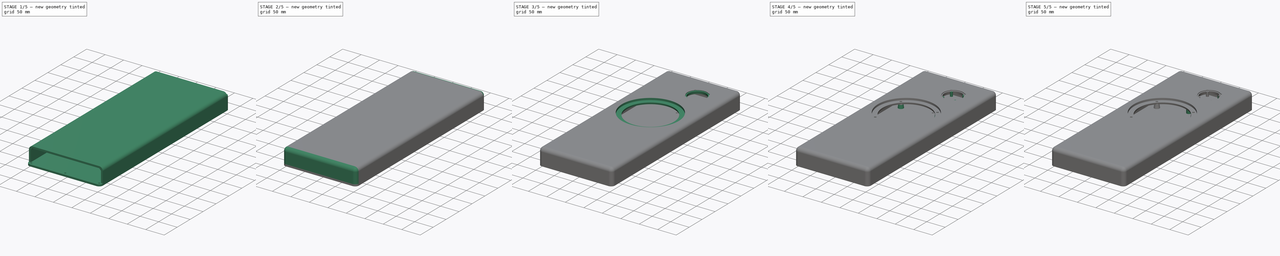
[diagram: build sequence overview — one tinted view per stage of 5, left to right]
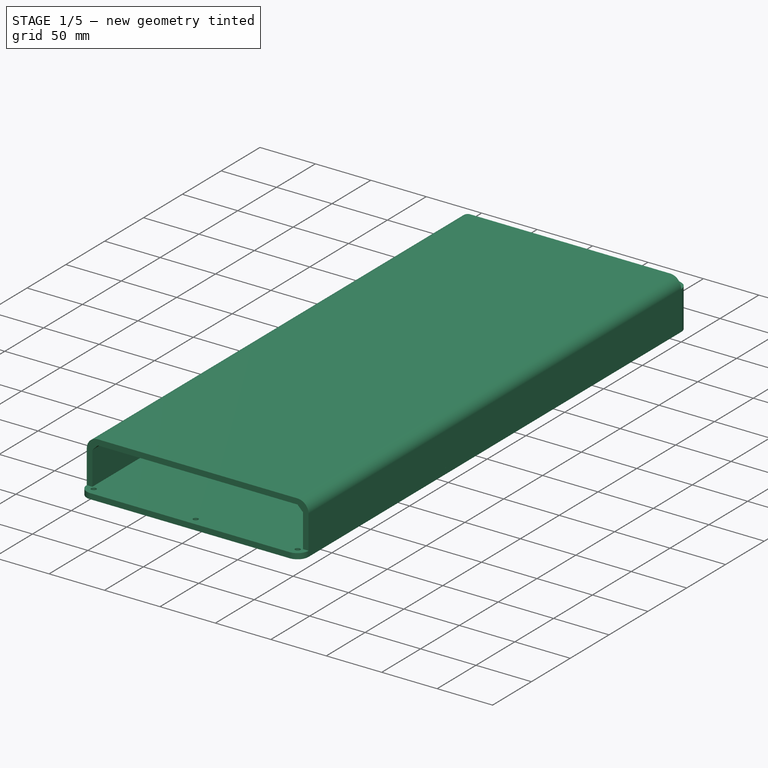
[diagram: stage 1 of 5 — iso view after this stage's code; geometry added in this stage tinted green]
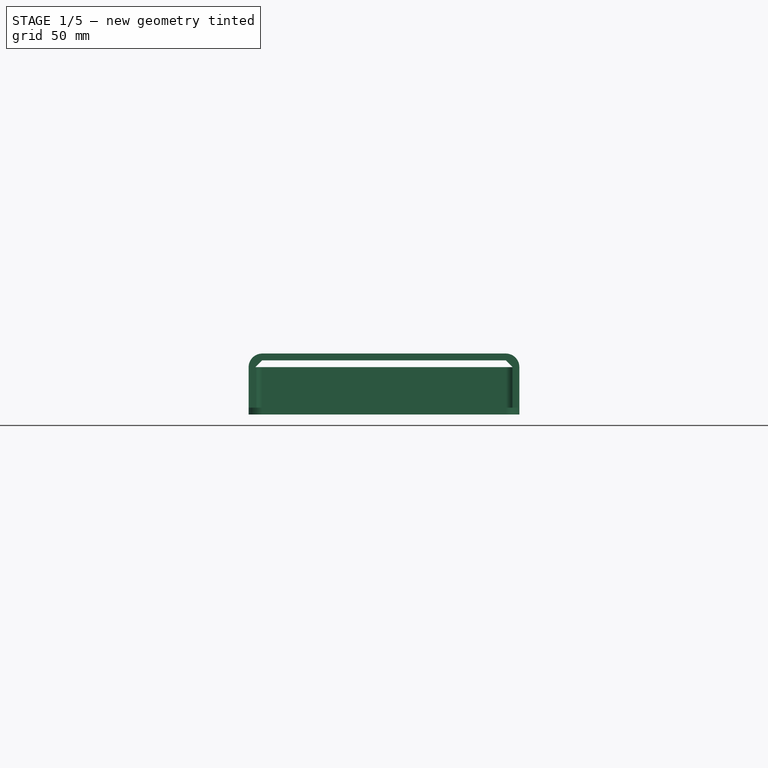
[diagram: stage 1 of 5 — front view after this stage's code; geometry added in this stage tinted green]
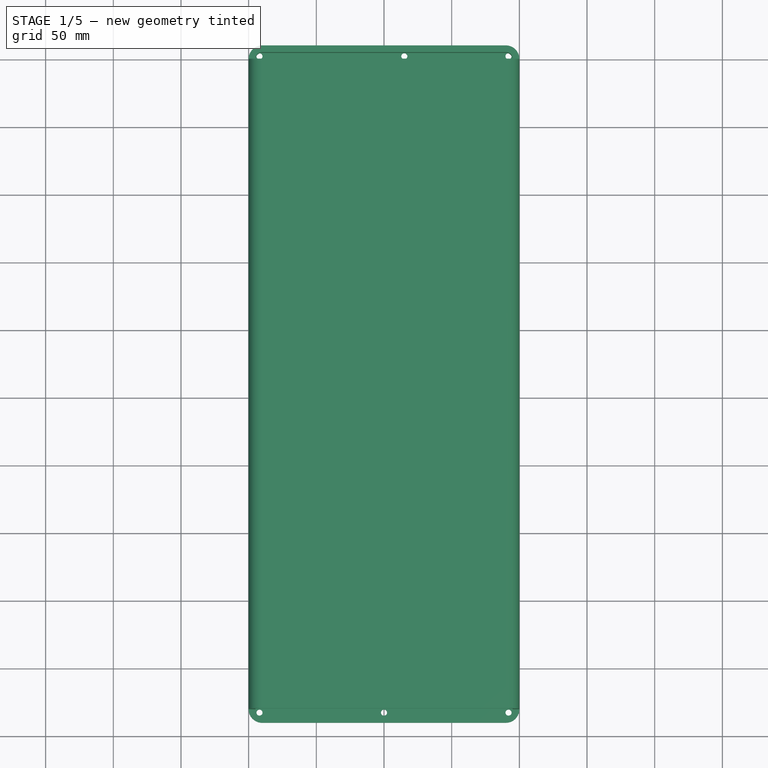
[diagram: stage 1 of 5 — top view after this stage's code; geometry added in this stage tinted green]
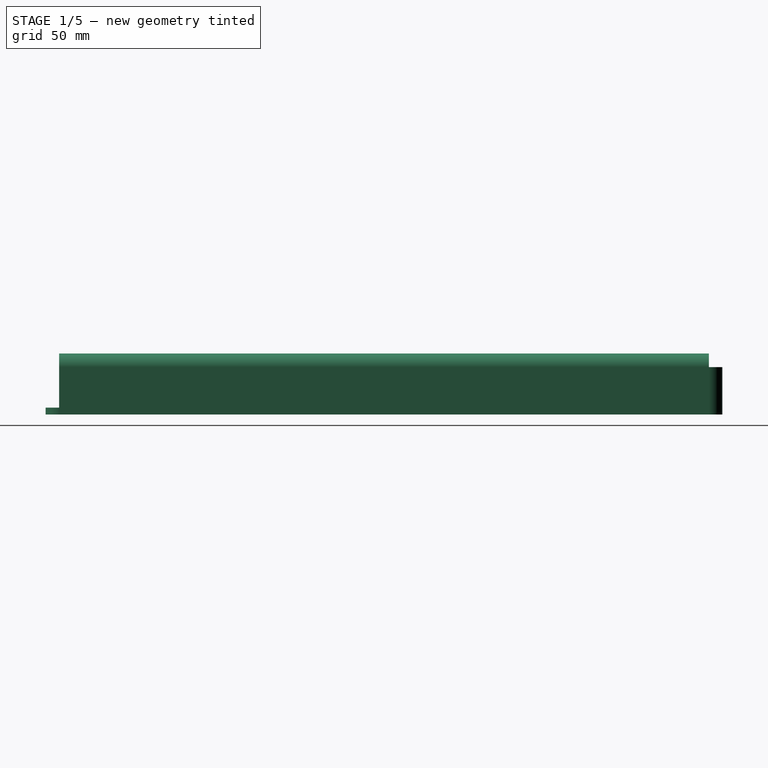
[diagram: stage 1 of 5 — right view after this stage's code; geometry added in this stage tinted green]
FCSTD DOCUMENT  (FreeCAD 1.1R39841 (Git))
Label: wallspeakers 0.1
License: All rights reserved
LicenseURL: http://en.wikipedia.org/wiki/All_rights_reserved
objects: Sketcher::SketchObject×18, PartDesign::Pad×9, PartDesign::Pocket×6, PartDesign::Hole×4, App::Point×2, PartDesign::Revolution×2, PartDesign::Body×2, Spreadsheet::Sheet×1, Part::Feature×1
note: 102 computed .brp shape members not serialized (recipe doc carries the construction recipe); baked Part::Feature solids carry a one-line shape summary decoded from their .brp

FEATURE [Spreadsheet::Sheet] Spreadsheet  label="dim"
  cells = A1='ext_width; B1(ext_width)=200; A2='ext_length; B2(ext_length)=500; A3='back_thickness; B3(back_thickness)=5; A4='front_thickness; B4(front_thickness)=5; A5='wall_height; B5(wall_height)=30; A6='wall_thickness; B6(wall_thickness)=5; A7='front_roundover; B7(front_roundover)=10; A12='bmr_x; B12(bmr_x)=32.5; A13='bmr_y; B13(bmr_y)=65; A14='bmr_screw_distance; B14(bmr_screw_distance)=24; A15='bmr_screw_offset; B15(bmr_screw_offset)==B14 * 0.707; A16='bmr_hole_diameter; B16(bmr_hole_diameter)=46.5; A17='bmr_rebate_depth; B17(bmr_rebate_depth)=2; A18='bmr_post_width; B18(bmr_post_width)=7; A20='woofer_x; B20(woofer_x)=0; A21='woofer_y; B21(woofer_y)=200; A22='woofer_support_thickness; B22=5; A23='woofer_screw_distance; B23(woofer_screw_thickness)=140.1; A24='woofer_screw_offset; B24(woofer_screw_offset)==B23 * 0.707; A25='woofer_hole_diameter; B25(woofer_hole_diameter)=128; A26='woofer_rebate_depth; B26(woofer_rebate_depth)=5.3
FEATURE [App::Point] Origin018
  Role = Origin
FEATURE [Sketcher::SketchObject] Sketch023  label="front shell major"
  ArcFitTolerance = 1e-06
  AttachmentSupport = -> [XZ_Plane009]
  ExternalTypes = [0]
  FullyConstrained = true
  MakeInternals = false
  MapMode = 5
  Placement = pos=(0,0,0) rot=(1,0,0;1.5708rad)
  expr: Constraints[10] = <<dim>>.front_roundover
  expr: Constraints[13] = <<dim>>.wall_height
  expr: Constraints[14] = <<dim>>.wall_height
  expr: Constraints[20] = <<dim>>.wall_thickness
  expr: Constraints[22] = <<dim>>.wall_height
  expr: Constraints[23] = <<dim>>.wall_height
  expr: Constraints[24] = <<dim>>.front_thickness
  expr: Constraints[26] = 180 mm
  expr: Constraints[2] = <<dim>>.front_roundover
  expr: Constraints[5] = <<dim>>.wall_height
  expr: Constraints[6] = <<dim>>.ext_width / 2
  expr: Constraints[7] = <<dim>>.wall_height
  sketch-geometry (12):
    g0: LineSegment StartX=-100 StartY=0 StartZ=0 EndX=-100 EndY=30 EndZ=0
    g1: ArcOfCircle CenterX=-90 CenterY=30 CenterZ=0 NormalX=0 NormalY=0 NormalZ=1 AngleXU=0 Radius=10 StartAngle=1.5708 EndAngle=3.14159
    g2: LineSegment StartX=100 StartY=0 StartZ=0 EndX=100 EndY=30 EndZ=0
    g3: ArcOfCircle CenterX=90 CenterY=30 CenterZ=0 NormalX=0 NormalY=0 NormalZ=1 AngleXU=0 Radius=10 StartAngle=0 EndAngle=1.5708
    g4: LineSegment StartX=-90 StartY=40 StartZ=0 EndX=90 EndY=40 EndZ=0
    g5: LineSegment StartX=-95 StartY=0 StartZ=0 EndX=-95 EndY=30 EndZ=0
    g6: LineSegment StartX=95 StartY=0 StartZ=0 EndX=95 EndY=30 EndZ=0
    g7: LineSegment StartX=-90 StartY=35 StartZ=0 EndX=90 EndY=35 EndZ=0
    g8: LineSegment StartX=-95 StartY=30 StartZ=0 EndX=-90 EndY=35 EndZ=0
    g9: LineSegment StartX=90 StartY=35 StartZ=0 EndX=95 EndY=30 EndZ=0
    g10: LineSegment StartX=95 StartY=0 StartZ=0 EndX=100 EndY=0 EndZ=0
    g11: LineSegment StartX=-100 StartY=0 StartZ=0 EndX=-95 EndY=0 EndZ=0
  constraints (35):
    c: PointOnObject(g0,g-1)
    c: Vertical(g0)
    c: Radius(g1) = 10
    c: Coincident(g1,g0)
    c: Angle(g1) = 1.5708
    c: DistanceY(g0,g0) = 30
    c: DistanceX(g0,g-1) = 100
    c: DistanceY(g-1,g1) = 30
    c: Vertical(g2)
    c: Angle(g3) = 1.5708
    c: Radius(g3) = 10
    c: Symmetric(g0,g2,g-2)
    c: Coincident(g3,g2)
    c: DistanceY(g2,g2) = 30
    c: DistanceY(g-1,g3) = 30
    c: Coincident(g4,g1)
    c: Coincident(g4,g3)
    c: PointOnObject(g5,g-1)
    c: Vertical(g5)
    c: Vertical(g6)
    c: Distance(g5,g0) = 5
    c: Symmetric(g5,g6,g-2)
    c: DistanceY(g5,g5) = 30
    c: DistanceY(g6,g6) = 30
    c: Distance(g7,g3) = 5
    c: Symmetric(g7,g7,g-2)
    c: DistanceX(g7,g7) = 180
    c: Coincident(g8,g5)
    c: Coincident(g8,g7)
    c: Coincident(g9,g7)
    c: Coincident(g9,g6)
    c: Coincident(g10,g6)
    c: Coincident(g10,g2)
    c: Coincident(g11,g0)
    c: Coincident(g11,g5)
FEATURE [PartDesign::Pad] Pad020
  Direction = (0,-1,2e-16)
  Length = 480
  Length2 = 10
  Placement = pos=(0,0,0) rot=(1,0,0;1.5708rad)
  Profile = -> Sketch023
  ReferenceAxis = -> Sketch023 [N_Axis]
  Suppressed = false
  Type = 0
  expr: Length = <<dim>>.ext_length - <<dim>>.front_roundover * 2
FEATURE [Sketcher::SketchObject] Sketch024
  ArcFitTolerance = 1e-06
  AttachmentSupport = -> [XY_Plane009]
  ExternalTypes = [0]
  FullyConstrained = true
  MakeInternals = false
  MapMode = 5
  expr: Constraints[0] = <<dim>>.ext_width - <<dim>>.front_roundover * 2
  expr: Constraints[16] = <<dim>>.ext_width / 2 - <<dim>>.front_roundover
  expr: Constraints[1] = <<dim>>.ext_width - <<dim>>.front_roundover * 2
  expr: Constraints[4] = <<dim>>.front_thickness
  expr: Constraints[5] = <<dim>>.front_roundover
  expr: Constraints[8] = <<dim>>.ext_width / 2 - <<dim>>.front_roundover
  sketch-geometry (8):
    g0: LineSegment StartX=-90 StartY=10 StartZ=0 EndX=90 EndY=10 EndZ=0
    g1: LineSegment StartX=-90 StartY=5 StartZ=0 EndX=90 EndY=5 EndZ=0
    g2: ArcOfCircle CenterX=90 CenterY=0 CenterZ=0 NormalX=0 NormalY=0 NormalZ=1 AngleXU=0 Radius=10 StartAngle=0 EndAngle=1.5708
    g3: ArcOfCircle CenterX=90 CenterY=0 CenterZ=0 NormalX=0 NormalY=0 NormalZ=1 AngleXU=0 Radius=5 StartAngle=0 EndAngle=1.5708
    g4: ArcOfCircle CenterX=-90 CenterY=0 CenterZ=0 NormalX=0 NormalY=0 NormalZ=1 AngleXU=0 Radius=10 StartAngle=1.5708 EndAngle=3.14159
    g5: ArcOfCircle CenterX=-90 CenterY=0 CenterZ=0 NormalX=0 NormalY=0 NormalZ=1 AngleXU=0 Radius=5 StartAngle=1.5708 EndAngle=3.14159
    g6: LineSegment StartX=-100 StartY=1.2e-15 StartZ=0 EndX=-95 EndY=6e-16 EndZ=0
    g7: LineSegment StartX=95 StartY=0 StartZ=0 EndX=100 EndY=0 EndZ=0
  constraints (24):
    c: DistanceX(g0,g0) = 180
    c: DistanceX(g1,g1) = 180
    c: Symmetric(g0,g0,g-2)
    c: Symmetric(g1,g1,g-2)
    c: Distance(g0,g1) = 5
    c: DistanceY(g-1,g0) = 10
    c: PointOnObject(g2,g-1)
    c: Coincident(g2,g0)
    c: DistanceX(g-1,g2) = 90
    c: PointOnObject(g2,g-1)
    c: Coincident(g3,g2)
    c: Coincident(g3,g1)
    c: PointOnObject(g3,g-1)
    c: PointOnObject(g4,g-1)
    c: Coincident(g4,g0)
    c: PointOnObject(g4,g-1)
    c: DistanceX(g4,g-1) = 90
    c: Coincident(g5,g4)
    c: Coincident(g5,g1)
    c: PointOnObject(g5,g-1)
    c: Coincident(g6,g4)
    c: Coincident(g6,g5)
    c: Coincident(g7,g3)
    c: Coincident(g7,g2)
FEATURE [PartDesign::Pad] Pad021
  BaseFeature = -> Pad020
  Direction = (0,0,1)
  Length = 30
  Length2 = 10
  Placement = pos=(0,0,0) rot=(1,0,0;1.5708rad)
  Profile = -> Sketch024
  ReferenceAxis = -> Sketch024 [N_Axis]
  Suppressed = false
  Type = 0
  expr: Length = <<dim>>.wall_height
FEATURE [PartDesign::Body] Body008  label="front part"
  AllowCompound = false
  Group = -> [Sketch023,Pad020,Sketch024,Pad021,Sketch025,Revolution,Sketch026,Pad022,Sketch027,Revolution001,Pad023,Pocket001,Sketch033,Sketch029,Pocket,Sketch030,Sketch031,Pocket002,Sketch032,Pocket003,Sketch034,Pocket004,Sketch035,Pad024,Hole018,Sketch036,Pad025,Hole019,Sketch037,Pad026,Sketch038,Pocket005,Sketch,Pad,Hole]
  Origin = -> Origin017
  Tip = -> Hole
FEATURE [Sketcher::SketchObject] Sketch039
  ArcFitTolerance = 1e-06
  AttachmentSupport = -> [XY_Plane]
  ExternalTypes = [0]
  FullyConstrained = true
  MakeInternals = false
  MapMode = 5
  expr: Constraints[20] = <<dim>>.ext_width
  expr: Constraints[21] = <<dim>>.ext_length
  sketch-geometry (10):
    g0: LineSegment StartX=-100 StartY=-2.2189e-12 StartZ=0 EndX=-100 EndY=-480 EndZ=0
    g1: LineSegment StartX=-90 StartY=-490 StartZ=0 EndX=90 EndY=-490 EndZ=0
    g2: LineSegment StartX=100 StartY=-480 StartZ=0 EndX=100 EndY=0 EndZ=0
    g3: LineSegment StartX=90 StartY=10 StartZ=0 EndX=-90 EndY=10 EndZ=0
    g4: ArcOfCircle CenterX=-90 CenterY=-2.2201e-12 CenterZ=0 NormalX=0 NormalY=0 NormalZ=1 AngleXU=0 Radius=10 StartAngle=1.5708 EndAngle=3.14159
    g5: ArcOfCircle CenterX=-90 CenterY=-480 CenterZ=0 NormalX=0 NormalY=0 NormalZ=1 AngleXU=0 Radius=10 StartAngle=3.14159 EndAngle=4.71239
    g6: ArcOfCircle CenterX=90 CenterY=-480 CenterZ=0 NormalX=0 NormalY=0 NormalZ=1 AngleXU=0 Radius=10 StartAngle=4.71239 EndAngle=6.28319
    g7: ArcOfCircle CenterX=90 CenterY=-2.2192e-12 CenterZ=0 NormalX=0 NormalY=0 NormalZ=1 AngleXU=0 Radius=10 StartAngle=2.219e-13 EndAngle=1.5708
    g8: GeomPoint [constr] X=-100 Y=10 Z=0
    g9: GeomPoint [constr] X=100 Y=-490 Z=0
  constraints (23):
    c: Tangent(g0,g4) = -1.5708
    c: Tangent(g0,g5) = -1.5708
    c: Tangent(g1,g5) = -1.5708
    c: Tangent(g1,g6) = -1.5708
    c: Tangent(g2,g6) = -1.5708
    c: Tangent(g2,g7) = -1.5708
    c: Tangent(g3,g7) = -1.5708
    c: Tangent(g3,g4) = -1.5708
    c: Vertical(g0)
    c: Vertical(g2)
    c: Horizontal(g1)
    c: Equal(g4,g5)
    c: Equal(g5,g6)
    c: Equal(g6,g7)
    c: PointOnObject(g8,g0)
    c: PointOnObject(g8,g3)
    c: PointOnObject(g9,g1)
    c: PointOnObject(g9,g2)
    c: Radius(g5) = 10
    c: Symmetric(g3,g3,g-2)
    c: Distance(g2,g0) = 200
    c: DistanceY(g1,g3) = 500
    c: PointOnObject(g2,g-1)
FEATURE [PartDesign::Pad] Pad027
  Direction = (0,0,1)
  Length = 5
  Length2 = 10
  Profile = -> Sketch039
  ReferenceAxis = -> Sketch039 [N_Axis]
  Reversed = true
  Suppressed = false
  Type = 0
  expr: Length = <<dim>>.back_thickness
FEATURE [Sketcher::SketchObject] Sketch040  label="backplate posts001"
  ArcFitTolerance = 1e-06
  AttachmentOffset = pos=(0,2.5,-5) rot=(0,0,1;0rad)
  AttachmentSupport = -> [XY_Plane]
  ExternalTypes = [0]
  FullyConstrained = true
  MakeInternals = false
  MapMode = 5
  Placement = pos=(0,2.5,-5) rot=(0,0,1;0rad)
  expr: .AttachmentOffset.Base.z = -<<dim>>.back_thickness
  expr: Constraints[1] = dim001.ext_width / 2 - dim001.wall_thickness - 3
  sketch-geometry (15):
    g0: Circle CenterX=-92 CenterY=-100 CenterZ=0 NormalX=0 NormalY=0 NormalZ=1 AngleXU=0 Radius=6
    g1: Circle CenterX=92 CenterY=-100 CenterZ=0 NormalX=0 NormalY=0 NormalZ=1 AngleXU=0 Radius=6
    g2: Circle CenterX=-92 CenterY=0 CenterZ=0 NormalX=0 NormalY=0 NormalZ=1 AngleXU=0 Radius=6
    g3: Circle CenterX=92 CenterY=0 CenterZ=0 NormalX=0 NormalY=0 NormalZ=1 AngleXU=0 Radius=6
    g4: Circle CenterX=-92 CenterY=-200 CenterZ=0 NormalX=0 NormalY=0 NormalZ=1 AngleXU=0 Radius=6
    g5: Circle CenterX=92 CenterY=-200 CenterZ=0 NormalX=0 NormalY=0 NormalZ=1 AngleXU=0 Radius=6
    g6: Circle CenterX=-92 CenterY=-300 CenterZ=0 NormalX=0 NormalY=0 NormalZ=1 AngleXU=0 Radius=6
    g7: Circle CenterX=92 CenterY=-300 CenterZ=0 NormalX=0 NormalY=0 NormalZ=1 AngleXU=0 Radius=6
    g8: Circle CenterX=-92 CenterY=-400 CenterZ=0 NormalX=0 NormalY=0 NormalZ=1 AngleXU=0 Radius=6
    g9: Circle CenterX=92 CenterY=-400 CenterZ=0 NormalX=0 NormalY=0 NormalZ=1 AngleXU=0 Radius=6
    g10: Circle CenterX=-92 CenterY=-485 CenterZ=0 NormalX=0 NormalY=0 NormalZ=1 AngleXU=0 Radius=6
    g11: Circle CenterX=92 CenterY=-485 CenterZ=0 NormalX=0 NormalY=0 NormalZ=1 AngleXU=0 Radius=6
    g12: Circle CenterX=0 CenterY=-485 CenterZ=0 NormalX=0 NormalY=0 NormalZ=1 AngleXU=0 Radius=6
    g13: Circle CenterX=0 CenterY=-100 CenterZ=0 NormalX=0 NormalY=0 NormalZ=1 AngleXU=0 Radius=6
    g14: Circle CenterX=15 CenterY=0 CenterZ=0 NormalX=0 NormalY=0 NormalZ=1 AngleXU=0 Radius=6
  constraints (39):
    c: Symmetric(g1,g0,g-2)
    c: DistanceX(g0,g-1) = 92
    c: Diameter(g0) = 12
    c: Diameter(g1) = 12
    c: DistanceY(g0,g-1) = 100
    c: Symmetric(g3,g2,g-2)
    c: DistanceX(g2,g-1) = 92
    c: Diameter(g2) = 12
    c: Diameter(g3) = 12
    c: DistanceY(g2,g-1) = 0
    c: Symmetric(g5,g4,g-2)
    c: DistanceX(g4,g-1) = 92
    c: Diameter(g4) = 12
    c: Diameter(g5) = 12
    c: DistanceY(g4,g-1) = 200
    c: Symmetric(g7,g6,g-2)
    c: DistanceX(g6,g-1) = 92
    c: Diameter(g6) = 12
    c: Diameter(g7) = 12
    c: DistanceY(g6,g-1) = 300
    c: Symmetric(g9,g8,g-2)
    c: DistanceX(g8,g-1) = 92
    c: Diameter(g8) = 12
    c: Diameter(g9) = 12
    c: DistanceY(g8,g-1) = 400
    c: Symmetric(g11,g10,g-2)
    c: DistanceX(g10,g-1) = 92
    c: Diameter(g10) = 12
    c: Diameter(g11) = 12
    c: DistanceY(g10,g-1) = 485
    c: Diameter(g12) = 12
    c: PointOnObject(g12,g-2)
    c: DistanceY(g12,g-1) = 485
    c: Diameter(g13) = 12
    c: PointOnObject(g13,g-2)
    c: DistanceY(g13,g-1) = 100
    c: Diameter(g14) = 12
    c: PointOnObject(g14,g-1)
    c: DistanceX(g-1,g14) = 15
FEATURE [PartDesign::Hole] Hole020
  BaseFeature = -> Pad027
  CustomThreadClearance = 0
  Depth = 5
  DepthType = 0
  Diameter = 4.5
  DrillForDepth = false
  DrillPoint = 1
  DrillPointAngle = 118
  HoleCutCountersinkAngle = 90
  HoleCutCustomValues = false
  HoleCutDepth = 0
  HoleCutDiameter = 6.1
  HoleCutType = 0
  ModelThread = false
  Profile = -> Sketch040
  Reversed = true
  Suppressed = false
  Tapered = false
  TaperedAngle = 90
  ThreadClass = 0
  ThreadDepth = 5
  ThreadDepthType = 0
  ThreadDirection = 0
  ThreadFit = 0
  ThreadSize = 11
  ThreadType = 1
  Threaded = false
  UseCustomThreadClearance = false
  expr: Depth = <<dim>>.back_thickness
FEATURE [PartDesign::Body] Body  label="back plate"
  AllowCompound = false
  Group = -> [Sketch039,Pad027,Sketch040,Hole020]
  Origin = -> Origin
  Tip = -> Hole020
FEATURE [Part::Feature] Part__Feature  label="2in BMR driver"
  Placement = pos=(32.5,-65,38) rot=(0,0,1;0rad)
  shape: bbox 51.7 x 51.7 x 25 mm, 180 faces (baked)
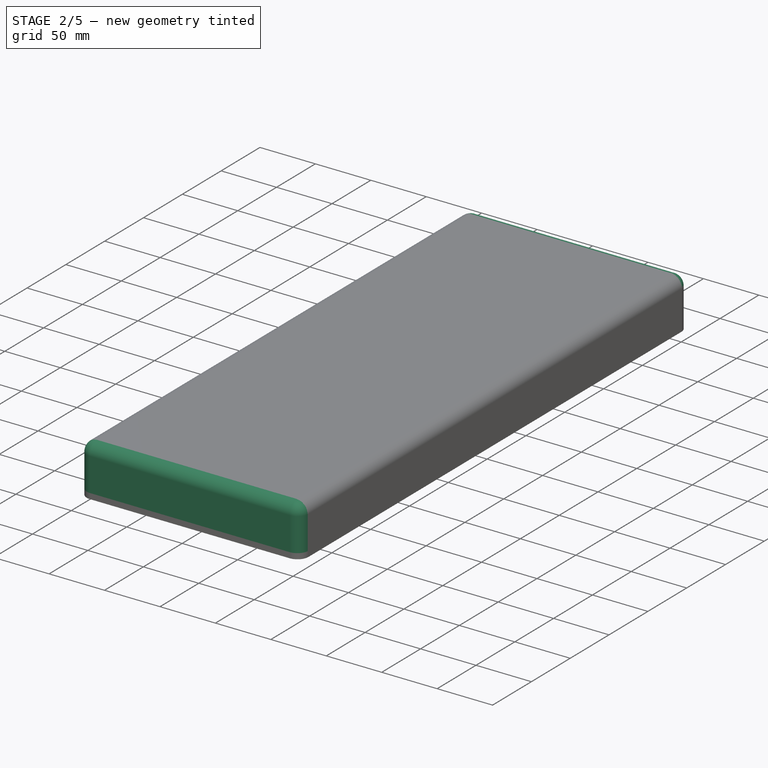
[diagram: stage 2 of 5 — iso view after this stage's code; geometry added in this stage tinted green]
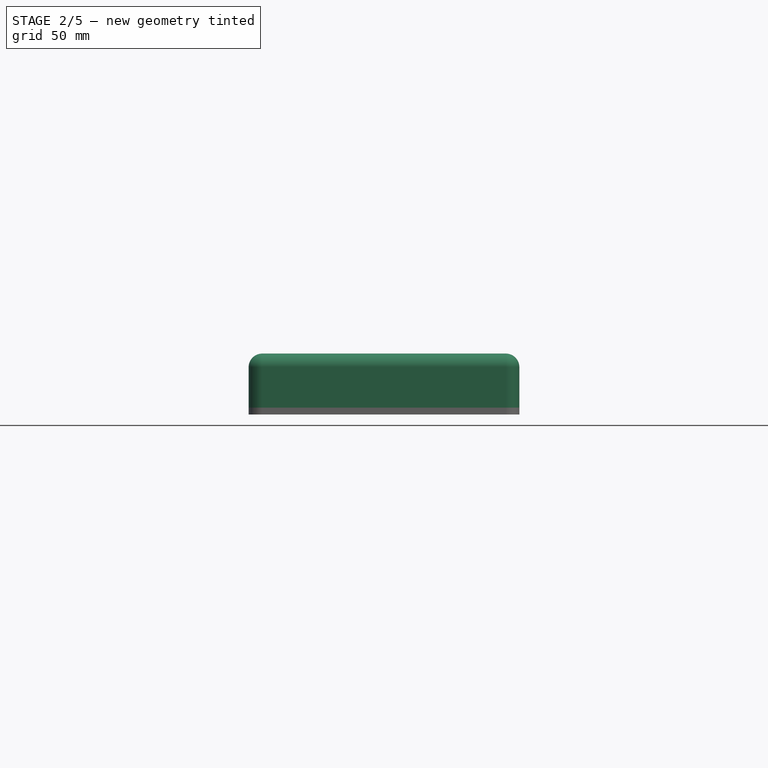
[diagram: stage 2 of 5 — front view after this stage's code; geometry added in this stage tinted green]
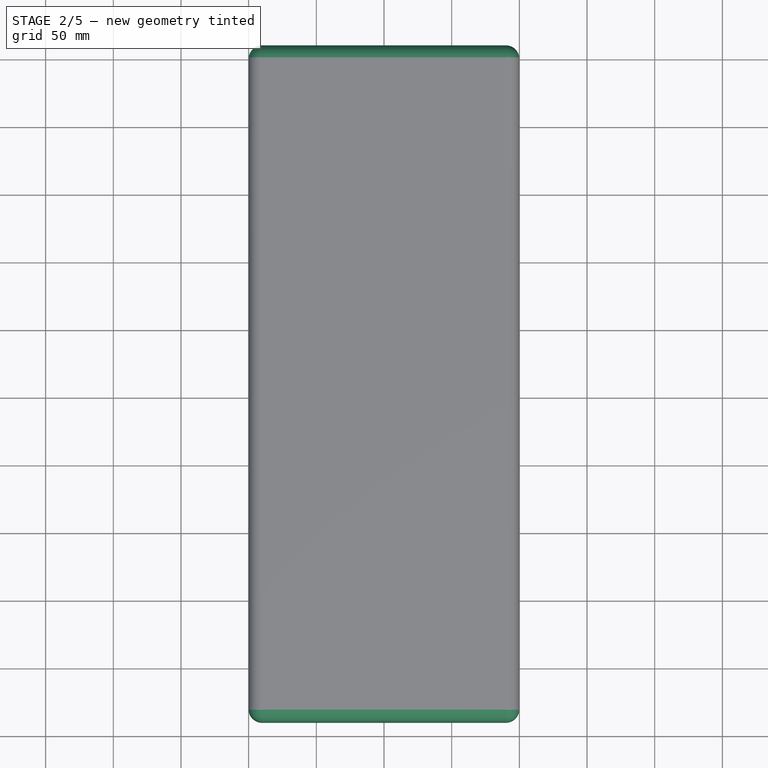
[diagram: stage 2 of 5 — top view after this stage's code; geometry added in this stage tinted green]
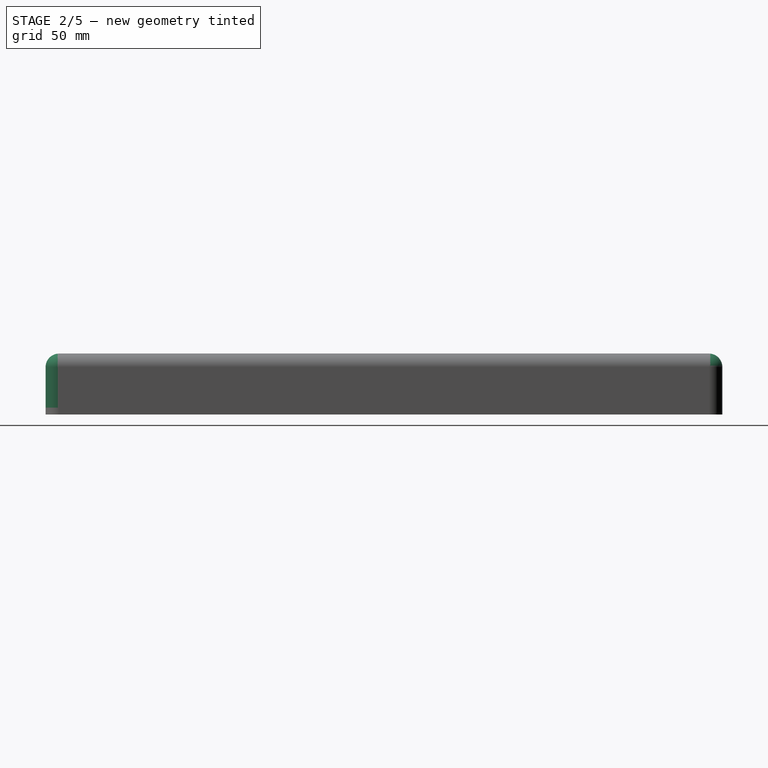
[diagram: stage 2 of 5 — right view after this stage's code; geometry added in this stage tinted green]
FEATURE [Sketcher::SketchObject] Sketch025
  ArcFitTolerance = 1e-06
  AttachmentOffset = pos=(0,-30,0) rot=(1,0,0;3.14159rad)
  AttachmentSupport = -> [Pad021]
  ExternalTypes = [0]
  FullyConstrained = true
  MakeInternals = false
  MapMode = 5
  Placement = pos=(0,3e-16,30) rot=(1,0,0;1.5708rad)
  expr: .AttachmentOffset.Base.y = -<<dim>>.wall_height
  sketch-geometry (8):
    g0: LineSegment StartX=-90 StartY=10 StartZ=0 EndX=90 EndY=10 EndZ=0
    g1: LineSegment StartX=-90 StartY=5 StartZ=0 EndX=90 EndY=5 EndZ=0
    g2: ArcOfCircle CenterX=90 CenterY=0 CenterZ=0 NormalX=0 NormalY=0 NormalZ=1 AngleXU=0 Radius=10 StartAngle=0 EndAngle=1.5708
    g3: ArcOfCircle CenterX=90 CenterY=0 CenterZ=0 NormalX=0 NormalY=0 NormalZ=1 AngleXU=0 Radius=5 StartAngle=0 EndAngle=1.5708
    g4: ArcOfCircle CenterX=-90 CenterY=0 CenterZ=0 NormalX=0 NormalY=0 NormalZ=1 AngleXU=0 Radius=10 StartAngle=1.5708 EndAngle=3.14159
    g5: ArcOfCircle CenterX=-90 CenterY=0 CenterZ=0 NormalX=0 NormalY=0 NormalZ=1 AngleXU=0 Radius=5 StartAngle=1.5708 EndAngle=3.14159
    g6: LineSegment StartX=-100 StartY=1.2e-15 StartZ=0 EndX=-95 EndY=6e-16 EndZ=0
    g7: LineSegment StartX=95 StartY=0 StartZ=0 EndX=100 EndY=0 EndZ=0
  constraints (24):
    c: DistanceX(g0,g0) = 180
    c: DistanceX(g1,g1) = 180
    c: Symmetric(g0,g0,g-2)
    c: Symmetric(g1,g1,g-2)
    c: Distance(g0,g1) = 5
    c: DistanceY(g-1,g0) = 10
    c: PointOnObject(g2,g-1)
    c: Coincident(g2,g0)
    c: DistanceX(g-1,g2) = 90
    c: PointOnObject(g2,g-1)
    c: Coincident(g3,g2)
    c: Coincident(g3,g1)
    c: PointOnObject(g3,g-1)
    c: PointOnObject(g4,g-1)
    c: Coincident(g4,g0)
    c: PointOnObject(g4,g-1)
    c: DistanceX(g4,g-1) = 90
    c: Coincident(g5,g4)
    c: Coincident(g5,g1)
    c: PointOnObject(g5,g-1)
    c: Coincident(g6,g4)
    c: Coincident(g6,g5)
    c: Coincident(g7,g3)
    c: Coincident(g7,g2)
FEATURE [PartDesign::Revolution] Revolution
  Angle = 90
  Angle2 = 60
  Axis = (1,0,0)
  Base = (0,3e-16,30)
  BaseFeature = -> Pad021
  Placement = pos=(0,0,0) rot=(1,0,0;1.5708rad)
  Profile = -> Sketch025
  ReferenceAxis = -> Sketch025 [H_Axis]
  Reversed = true
  Suppressed = false
  Type = 0
FEATURE [Sketcher::SketchObject] Sketch026
  ArcFitTolerance = 1e-06
  AttachmentOffset = pos=(0,-480,0) rot=(0,0,1;3.14159rad)
  AttachmentSupport = -> [XY_Plane009]
  ExternalTypes = [0]
  FullyConstrained = true
  MakeInternals = false
  MapMode = 5
  Placement = pos=(0,-480,0) rot=(0,0,1;3.14159rad)
  expr: .AttachmentOffset.Base.y = -<<dim>>.ext_length + <<dim>>.front_roundover * 2
  sketch-geometry (8):
    g0: LineSegment StartX=-90 StartY=10 StartZ=0 EndX=90 EndY=10 EndZ=0
    g1: LineSegment StartX=-90 StartY=5 StartZ=0 EndX=90 EndY=5 EndZ=0
    g2: ArcOfCircle CenterX=90 CenterY=0 CenterZ=0 NormalX=0 NormalY=0 NormalZ=1 AngleXU=0 Radius=10 StartAngle=0 EndAngle=1.5708
    g3: ArcOfCircle CenterX=90 CenterY=0 CenterZ=0 NormalX=0 NormalY=0 NormalZ=1 AngleXU=0 Radius=5 StartAngle=0 EndAngle=1.5708
    g4: ArcOfCircle CenterX=-90 CenterY=0 CenterZ=0 NormalX=0 NormalY=0 NormalZ=1 AngleXU=0 Radius=10 StartAngle=1.5708 EndAngle=3.14159
    g5: ArcOfCircle CenterX=-90 CenterY=0 CenterZ=0 NormalX=0 NormalY=0 NormalZ=1 AngleXU=0 Radius=5 StartAngle=1.5708 EndAngle=3.14159
    g6: LineSegment StartX=-100 StartY=1.2e-15 StartZ=0 EndX=-95 EndY=6e-16 EndZ=0
    g7: LineSegment StartX=95 StartY=0 StartZ=0 EndX=100 EndY=0 EndZ=0
  constraints (24):
    c: DistanceX(g0,g0) = 180
    c: DistanceX(g1,g1) = 180
    c: Symmetric(g0,g0,g-2)
    c: Symmetric(g1,g1,g-2)
    c: Distance(g0,g1) = 5
    c: DistanceY(g-1,g0) = 10
    c: PointOnObject(g2,g-1)
    c: Coincident(g2,g0)
    c: DistanceX(g-1,g2) = 90
    c: PointOnObject(g2,g-1)
    c: Coincident(g3,g2)
    c: Coincident(g3,g1)
    c: PointOnObject(g3,g-1)
    c: PointOnObject(g4,g-1)
    c: Coincident(g4,g0)
    c: PointOnObject(g4,g-1)
    c: DistanceX(g4,g-1) = 90
    c: Coincident(g5,g4)
    c: Coincident(g5,g1)
    c: PointOnObject(g5,g-1)
    c: Coincident(g6,g4)
    c: Coincident(g6,g5)
    c: Coincident(g7,g3)
    c: Coincident(g7,g2)
FEATURE [PartDesign::Pad] Pad022
  BaseFeature = -> Revolution
  Direction = (0,0,1)
  Length = 30
  Length2 = 10
  Placement = pos=(0,0,0) rot=(1,0,0;1.5708rad)
  Profile = -> Sketch026
  ReferenceAxis = -> Sketch026 [N_Axis]
  Suppressed = false
  Type = 0
  expr: Length = <<dim>>.wall_height
FEATURE [Sketcher::SketchObject] Sketch027
  ArcFitTolerance = 1e-06
  AttachmentOffset = pos=(0,30,0) rot=(0,0,1;0rad)
  AttachmentSupport = -> [Pad022]
  ExternalTypes = [0]
  FullyConstrained = true
  MakeInternals = false
  MapMode = 5
  Placement = pos=(0,-480,30) rot=(1,0,0;1.5708rad)
  expr: .AttachmentOffset.Base.y = <<dim>>.wall_height
  sketch-geometry (8):
    g0: LineSegment StartX=-90 StartY=10 StartZ=0 EndX=90 EndY=10 EndZ=0
    g1: LineSegment StartX=-90 StartY=5 StartZ=0 EndX=90 EndY=5 EndZ=0
    g2: ArcOfCircle CenterX=90 CenterY=0 CenterZ=0 NormalX=0 NormalY=0 NormalZ=1 AngleXU=0 Radius=10 StartAngle=0 EndAngle=1.5708
    g3: ArcOfCircle CenterX=90 CenterY=0 CenterZ=0 NormalX=0 NormalY=0 NormalZ=1 AngleXU=0 Radius=5 StartAngle=0 EndAngle=1.5708
    g4: ArcOfCircle CenterX=-90 CenterY=0 CenterZ=0 NormalX=0 NormalY=0 NormalZ=1 AngleXU=0 Radius=10 StartAngle=1.5708 EndAngle=3.14159
    g5: ArcOfCircle CenterX=-90 CenterY=0 CenterZ=0 NormalX=0 NormalY=0 NormalZ=1 AngleXU=0 Radius=5 StartAngle=1.5708 EndAngle=3.14159
    g6: LineSegment StartX=-100 StartY=1.2e-15 StartZ=0 EndX=-95 EndY=6e-16 EndZ=0
    g7: LineSegment StartX=95 StartY=0 StartZ=0 EndX=100 EndY=0 EndZ=0
  constraints (24):
    c: DistanceX(g0,g0) = 180
    c: DistanceX(g1,g1) = 180
    c: Symmetric(g0,g0,g-2)
    c: Symmetric(g1,g1,g-2)
    c: Distance(g0,g1) = 5
    c: DistanceY(g-1,g0) = 10
    c: PointOnObject(g2,g-1)
    c: Coincident(g2,g0)
    c: DistanceX(g-1,g2) = 90
    c: PointOnObject(g2,g-1)
    c: Coincident(g3,g2)
    c: Coincident(g3,g1)
    c: PointOnObject(g3,g-1)
    c: PointOnObject(g4,g-1)
    c: Coincident(g4,g0)
    c: PointOnObject(g4,g-1)
    c: DistanceX(g4,g-1) = 90
    c: Coincident(g5,g4)
    c: Coincident(g5,g1)
    c: PointOnObject(g5,g-1)
    c: Coincident(g6,g4)
    c: Coincident(g6,g5)
    c: Coincident(g7,g3)
    c: Coincident(g7,g2)
FEATURE [PartDesign::Revolution] Revolution001
  Angle = 90
  Angle2 = 60
  Axis = (1,0,0)
  Base = (0,-480,30)
  BaseFeature = -> Pad022
  Placement = pos=(0,0,0) rot=(1,0,0;1.5708rad)
  Profile = -> Sketch027
  ReferenceAxis = -> Sketch027 [H_Axis]
  Suppressed = false
  Type = 0
FEATURE [Sketcher::SketchObject] Sketch030  label="woofer rebate"
  ArcFitTolerance = 1e-06
  AttachmentSupport = -> [Revolution001]
  ExternalTypes = [0]
  FullyConstrained = true
  MakeInternals = false
  MapMode = 5
  Placement = pos=(1.184e-13,8.9e-15,40) rot=(0,0,1;3.14159rad)
  sketch-geometry (1):
    g0: Circle CenterX=0 CenterY=200 CenterZ=0 NormalX=0 NormalY=0 NormalZ=1 AngleXU=0 Radius=76.75
  constraints (3):
    c: Diameter(g0) = 153.5
    c: DistanceY(g-1,g0) = 200
    c: DistanceX(g0,g-1) = 0
FEATURE [Sketcher::SketchObject] Sketch032  label="bmr notches"
  ArcFitTolerance = 1e-06
  AttachmentOffset = pos=(32.5,-65,40) rot=(0,0,1;0.785398rad)
  AttachmentSupport = -> [XY_Plane009]
  ExternalTypes = [0]
  FullyConstrained = true
  MakeInternals = false
  MapMode = 5
  Placement = pos=(32.5,-65,40) rot=(0,0,1;0.785398rad)
  expr: .AttachmentOffset.Base.x = <<dim>>.bmr_x
  expr: .AttachmentOffset.Base.y = -<<dim>>.bmr_y
  expr: .AttachmentOffset.Base.z = <<dim>>.wall_height + <<dim>>.front_roundover
  expr: Constraints[10] = <<dim>>.bmr_screw_distance
  expr: Constraints[11] = <<dim>>.bmr_screw_distance
  expr: Constraints[2] = <<dim>>.bmr_screw_distance
  expr: Constraints[3] = <<dim>>.bmr_post_width
  expr: Constraints[5] = <<dim>>.bmr_post_width
  expr: Constraints[7] = <<dim>>.bmr_post_width
  expr: Constraints[9] = <<dim>>.bmr_screw_distance
  sketch-geometry (4):
    g0: Circle CenterX=24 CenterY=0 CenterZ=0 NormalX=0 NormalY=0 NormalZ=1 AngleXU=0 Radius=4
    g1: Circle CenterX=0 CenterY=24 CenterZ=0 NormalX=0 NormalY=0 NormalZ=1 AngleXU=0 Radius=3.5
    g2: Circle CenterX=-24 CenterY=0 CenterZ=0 NormalX=0 NormalY=0 NormalZ=1 AngleXU=0 Radius=3.5
    g3: Circle CenterX=0 CenterY=-24 CenterZ=0 NormalX=0 NormalY=0 NormalZ=1 AngleXU=0 Radius=3.5
  constraints (12):
    c: Diameter(g0) = 8
    c: PointOnObject(g0,g-1)
    c: DistanceX(g-1,g0) = 24
    c: Diameter(g1) = 7
    c: PointOnObject(g1,g-2)
    c: Diameter(g2) = 7
    c: PointOnObject(g2,g-1)
    c: Diameter(g3) = 7
    c: PointOnObject(g3,g-2)
    c: DistanceX(g2,g-1) = 24
    c: DistanceY(g3,g-1) = 24
    c: DistanceY(g-1,g1) = 24
FEATURE [Sketcher::SketchObject] Sketch033  label="driver support rings"
  ArcFitTolerance = 1e-06
  AttachmentOffset = pos=(0,0,35) rot=(0,0,1;3.14159rad)
  AttachmentSupport = -> [XY_Plane009]
  ExternalTypes = [0]
  FullyConstrained = true
  MakeInternals = false
  MapMode = 5
  Placement = pos=(0,0,35) rot=(0,0,1;3.14159rad)
  expr: .AttachmentOffset.Base.z = <<dim>>.wall_height + <<dim>>.front_roundover - <<dim>>.front_thickness
  expr: Constraints[0] = <<dim>>.bmr_hole_diameter + 20
  expr: Constraints[1] = 170
  sketch-geometry (2):
    g0: Circle CenterX=-32.5 CenterY=65 CenterZ=0 NormalX=0 NormalY=0 NormalZ=1 AngleXU=0 Radius=33.25
    g1: Circle CenterX=0 CenterY=200 CenterZ=0 NormalX=0 NormalY=0 NormalZ=1 AngleXU=0 Radius=85
  constraints (6):
    c: Diameter(g0) = 66.5
    c: Diameter(g1) = 170
    c: DistanceY(g-1,g0) = 65
    c: DistanceX(g0,g-1) = 32.5
    c: DistanceY(g-1,g1) = 200
    c: DistanceX(g1,g-1) = 0
FEATURE [PartDesign::Pad] Pad023
  BaseFeature = -> Revolution001
  Direction = (0,0,1)
  Length = 5
  Length2 = 10
  Placement = pos=(0,0,0) rot=(1,0,0;1.5708rad)
  Profile = -> Sketch033
  ReferenceAxis = -> Sketch033 [N_Axis]
  Reversed = true
  Suppressed = false
  TaperAngle = -10
  Type = 0
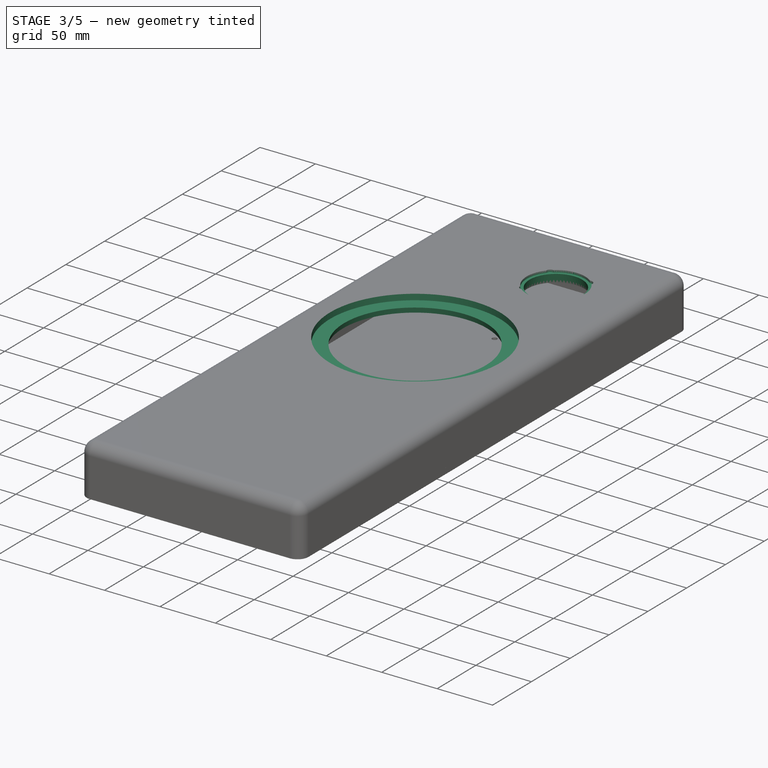
[diagram: stage 3 of 5 — iso view after this stage's code; geometry added in this stage tinted green]
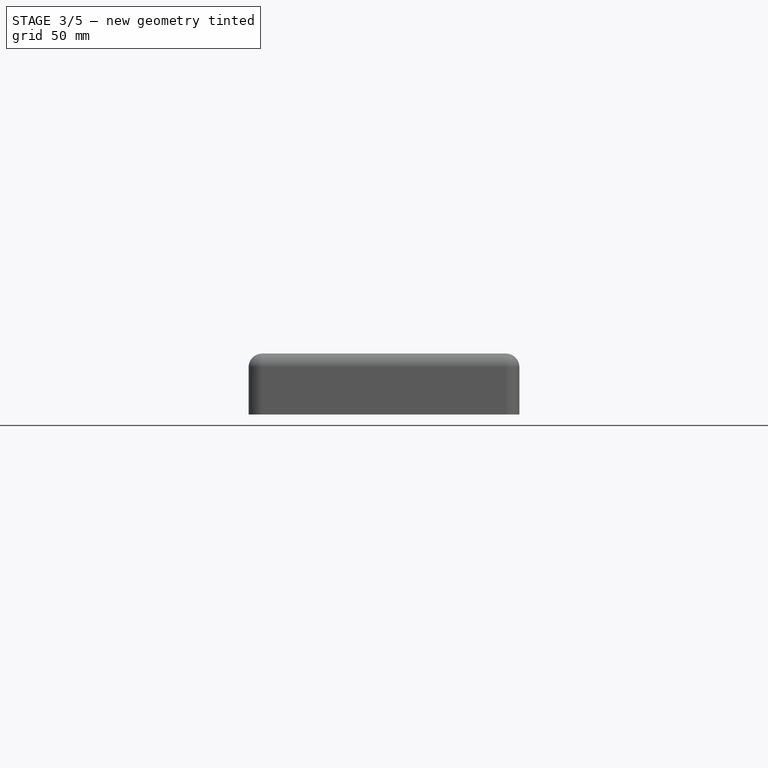
[diagram: stage 3 of 5 — front view after this stage's code; geometry added in this stage tinted green]
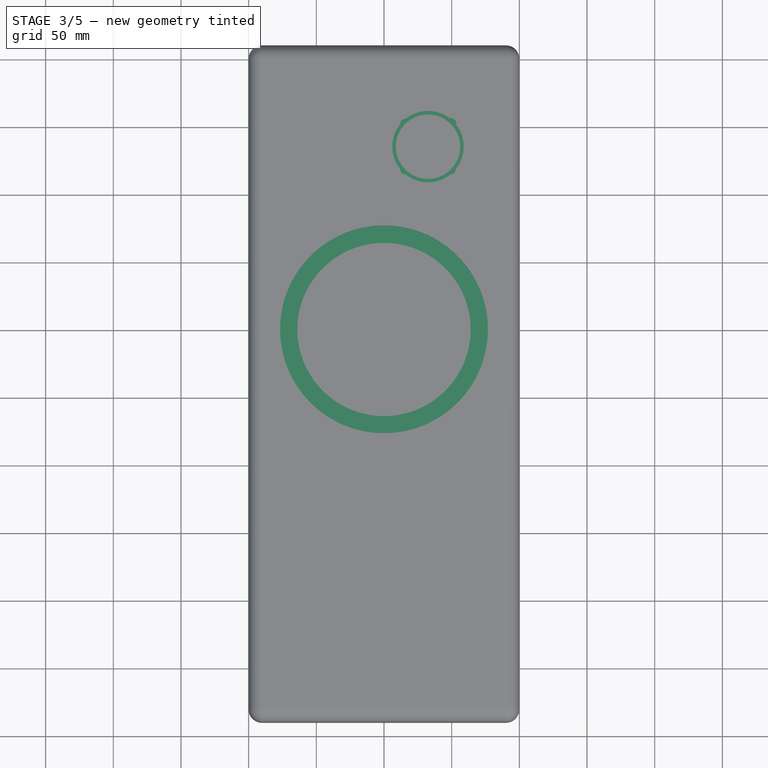
[diagram: stage 3 of 5 — top view after this stage's code; geometry added in this stage tinted green]
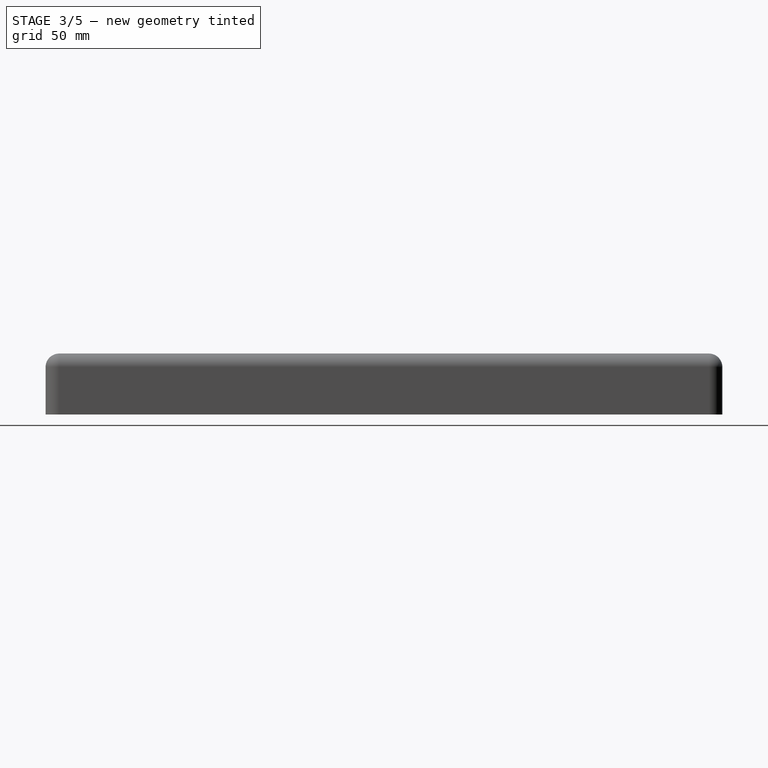
[diagram: stage 3 of 5 — right view after this stage's code; geometry added in this stage tinted green]
FEATURE [PartDesign::Pocket] Pocket001
  BaseFeature = -> Pad023
  Direction = (-3e-15,0,-1)
  Length = 5.3
  Length2 = 5
  Placement = pos=(0,0,0) rot=(1,0,0;1.5708rad)
  Profile = -> Sketch030
  ReferenceAxis = -> Sketch030 [N_Axis]
  Suppressed = false
  Type = 0
  expr: Length = <<dim>>.woofer_rebate_depth
FEATURE [Sketcher::SketchObject] Sketch029  label="woofer hole"
  ArcFitTolerance = 1e-06
  AttachmentSupport = -> [Pocket001]
  ExternalTypes = [0]
  FullyConstrained = true
  MakeInternals = false
  MapMode = 5
  Placement = pos=(1.028e-13,0,34.7) rot=(0,0,1;3.14159rad)
  expr: Constraints[0] = <<dim>>.woofer_hole_diameter
  expr: Constraints[1] = <<dim>>.woofer_y
  expr: Constraints[2] = <<dim>>.woofer_x
  sketch-geometry (1):
    g0: Circle CenterX=0 CenterY=200 CenterZ=0 NormalX=0 NormalY=0 NormalZ=1 AngleXU=0 Radius=64
  constraints (3):
    c: Diameter(g0) = 128
    c: DistanceY(g-1,g0) = 200
    c: DistanceX(g0,g-1) = 0
FEATURE [PartDesign::Pocket] Pocket
  BaseFeature = -> Pocket001
  Direction = (-3e-15,0,-1)
  Length = 15
  Length2 = 5
  Placement = pos=(0,0,0) rot=(1,0,0;1.5708rad)
  Profile = -> Sketch029
  ReferenceAxis = -> Sketch029 [N_Axis]
  Suppressed = false
  TaperAngle = 15
  Type = 0
  expr: Length = <<dim>>.front_thickness + 10
FEATURE [Sketcher::SketchObject] Sketch031  label="bmr rebate"
  ArcFitTolerance = 1e-06
  AttachmentSupport = -> [Pocket]
  ExternalTypes = [0]
  FullyConstrained = true
  MakeInternals = false
  MapMode = 5
  Placement = pos=(1.184e-13,8.9e-15,40) rot=(0,0,1;3.14159rad)
  sketch-geometry (1):
    g0: Circle CenterX=-32.5 CenterY=65 CenterZ=0 NormalX=0 NormalY=0 NormalZ=1 AngleXU=0 Radius=26.35
  constraints (3):
    c: Diameter(g0) = 52.7
    c: DistanceY(g-1,g0) = 65
    c: DistanceX(g0,g-1) = 32.5
FEATURE [PartDesign::Pocket] Pocket002
  BaseFeature = -> Pocket
  Direction = (-3e-15,0,-1)
  Length = 2
  Length2 = 5
  Placement = pos=(0,0,0) rot=(1,0,0;1.5708rad)
  Profile = -> Sketch031
  ReferenceAxis = -> Sketch031 [N_Axis]
  Suppressed = false
  Type = 0
  expr: Length = <<dim>>.bmr_rebate_depth
FEATURE [PartDesign::Pocket] Pocket003
  BaseFeature = -> Pocket002
  Direction = (0,0,-1)
  Length = 2
  Length2 = 5
  Placement = pos=(0,0,0) rot=(1,0,0;1.5708rad)
  Profile = -> Sketch032
  ReferenceAxis = -> Sketch032 [N_Axis]
  Suppressed = false
  Type = 0
  expr: Length = <<dim>>.bmr_rebate_depth
FEATURE [Sketcher::SketchObject] Sketch034  label="bmr hole"
  ArcFitTolerance = 1e-06
  AttachmentSupport = -> [Pocket003]
  ExternalTypes = [0]
  FullyConstrained = true
  MakeInternals = false
  MapMode = 5
  Placement = pos=(1.184e-13,8.9e-15,40) rot=(0,0,1;3.14159rad)
  sketch-geometry (1):
    g0: Circle CenterX=-32.5 CenterY=65 CenterZ=0 NormalX=0 NormalY=0 NormalZ=1 AngleXU=0 Radius=23.25
  constraints (3):
    c: Diameter(g0) = 46.5
    c: DistanceY(g-1,g0) = 65
    c: DistanceX(g0,g-1) = 32.5
FEATURE [PartDesign::Pocket] Pocket004
  BaseFeature = -> Pocket003
  Direction = (-3e-15,0,-1)
  Length = 20
  Length2 = 5
  Placement = pos=(0,0,0) rot=(1,0,0;1.5708rad)
  Profile = -> Sketch034
  ReferenceAxis = -> Sketch034 [N_Axis]
  Suppressed = false
  TaperAngle = 15
  Type = 0
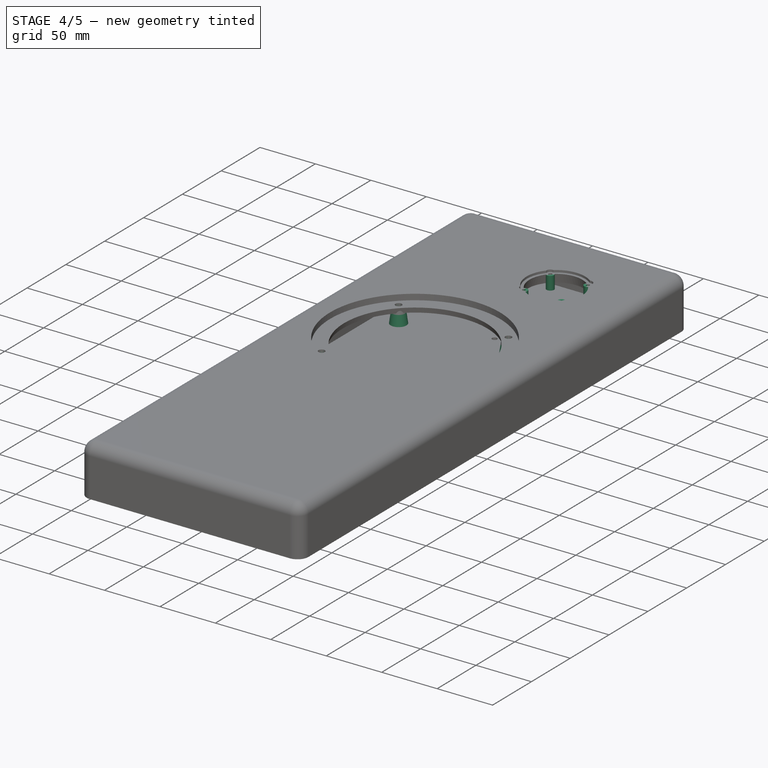
[diagram: stage 4 of 5 — iso view after this stage's code; geometry added in this stage tinted green]
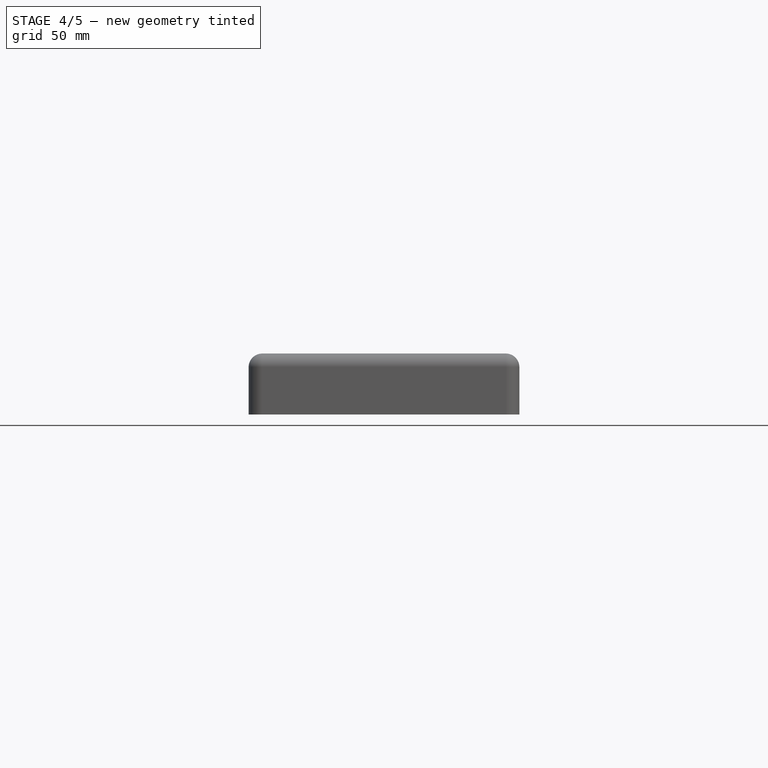
[diagram: stage 4 of 5 — front view after this stage's code; geometry added in this stage tinted green]
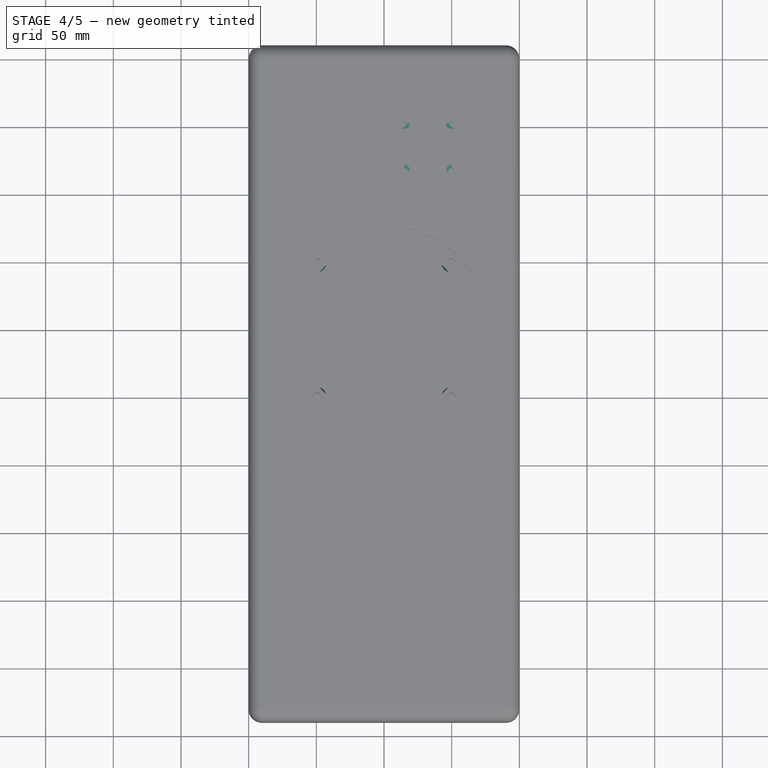
[diagram: stage 4 of 5 — top view after this stage's code; geometry added in this stage tinted green]
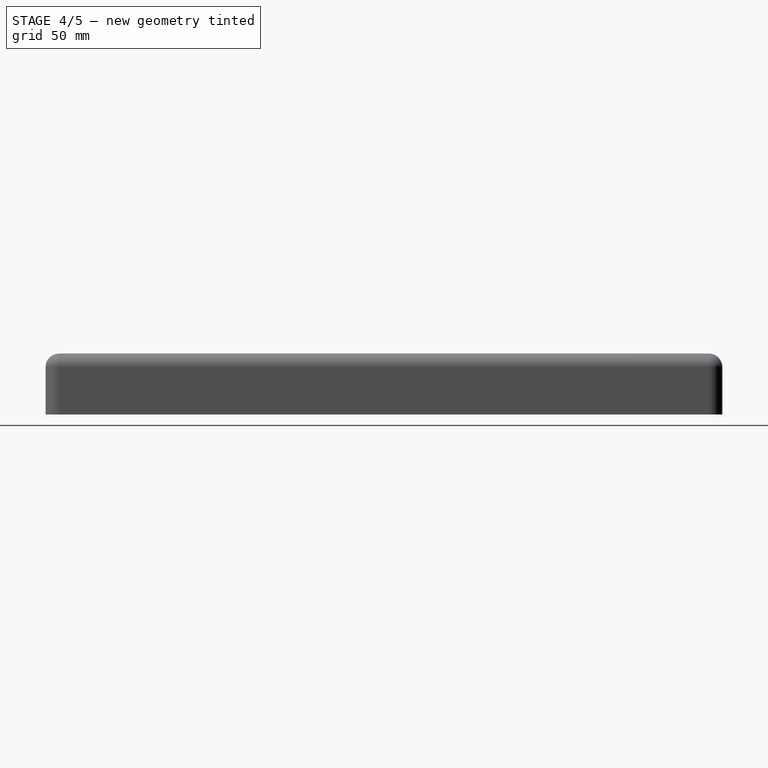
[diagram: stage 4 of 5 — right view after this stage's code; geometry added in this stage tinted green]
FEATURE [Sketcher::SketchObject] Sketch035  label="bmr posts"
  ArcFitTolerance = 1e-06
  AttachmentOffset = pos=(-32.5,65,0) rot=(0,0,1;0.785398rad)
  AttachmentSupport = -> [Pocket002]
  ExternalTypes = [0]
  FullyConstrained = true
  MakeInternals = false
  MapMode = 5
  Placement = pos=(32.5,-65,38) rot=(0,0,1;3.92699rad)
  expr: .AttachmentOffset.Base.x = -<<dim>>.bmr_x
  expr: .AttachmentOffset.Base.y = <<dim>>.bmr_y
  expr: .AttachmentOffset.Base.z = 0
  sketch-geometry (4):
    g0: Circle CenterX=24 CenterY=0 CenterZ=0 NormalX=0 NormalY=0 NormalZ=1 AngleXU=0 Radius=3.35
    g1: Circle CenterX=0 CenterY=24 CenterZ=0 NormalX=0 NormalY=0 NormalZ=1 AngleXU=0 Radius=3.35
    g2: Circle CenterX=-24 CenterY=0 CenterZ=0 NormalX=0 NormalY=0 NormalZ=1 AngleXU=0 Radius=3.35
    g3: Circle CenterX=0 CenterY=-24 CenterZ=0 NormalX=0 NormalY=0 NormalZ=1 AngleXU=0 Radius=3.35
  constraints (12):
    c: Diameter(g0) = 6.7
    c: PointOnObject(g0,g-1)
    c: DistanceX(g-1,g0) = 24
    c: Diameter(g1) = 6.7
    c: PointOnObject(g1,g-2)
    c: Diameter(g2) = 6.7
    c: PointOnObject(g2,g-1)
    c: Diameter(g3) = 6.7
    c: PointOnObject(g3,g-2)
    c: DistanceX(g2,g-1) = 24
    c: DistanceY(g3,g-1) = 24
    c: DistanceY(g-1,g1) = 24
FEATURE [PartDesign::Pad] Pad024
  BaseFeature = -> Pocket004
  Direction = (2.9e-15,0,1)
  Length = 12
  Length2 = 10
  Placement = pos=(0,0,0) rot=(1,0,0;1.5708rad)
  Profile = -> Sketch035
  ReferenceAxis = -> Sketch035 [N_Axis]
  Reversed = true
  Suppressed = false
  Type = 0
FEATURE [PartDesign::Hole] Hole018
  BaseFeature = -> Pad024
  CustomThreadClearance = 0
  Depth = 25
  DepthType = 0
  Diameter = 3
  DrillForDepth = false
  DrillPoint = 1
  DrillPointAngle = 118
  HoleCutCountersinkAngle = 90
  HoleCutCustomValues = false
  HoleCutDepth = 0
  HoleCutDiameter = 6.1
  HoleCutType = 0
  ModelThread = false
  Placement = pos=(0,0,0) rot=(1,0,0;1.5708rad)
  Profile = -> Sketch035
  Suppressed = false
  Tapered = false
  TaperedAngle = 90
  ThreadClass = 0
  ThreadDepth = 25
  ThreadDepthType = 0
  ThreadDirection = 0
  ThreadFit = 0
  ThreadSize = 0
  ThreadType = 0
  Threaded = false
  UseCustomThreadClearance = false
FEATURE [Sketcher::SketchObject] Sketch036  label="woofer posts"
  ArcFitTolerance = 1e-06
  AttachmentOffset = pos=(0,-200,34.7) rot=(0,0,1;0.785398rad)
  AttachmentSupport = -> [XY_Plane009]
  ExternalTypes = [0]
  FullyConstrained = true
  MakeInternals = false
  MapMode = 5
  Placement = pos=(0,-200,34.7) rot=(0,0,1;0.785398rad)
  expr: .AttachmentOffset.Base.x = 0
  expr: .AttachmentOffset.Base.y = -<<dim>>.woofer_y
  expr: .AttachmentOffset.Base.z = <<dim>>.wall_height + <<dim>>.front_roundover - <<dim>>.woofer_rebate_depth
  expr: Constraints[10] = <<dim>>.woofer_screw_thickness / 2
  expr: Constraints[11] = <<dim>>.woofer_screw_thickness / 2
  expr: Constraints[2] = <<dim>>.woofer_screw_thickness / 2
  expr: Constraints[9] = <<dim>>.woofer_screw_thickness / 2
  sketch-geometry (4):
    g0: Circle CenterX=70.05 CenterY=0 CenterZ=0 NormalX=0 NormalY=0 NormalZ=1 AngleXU=0 Radius=5
    g1: Circle CenterX=0 CenterY=70.05 CenterZ=0 NormalX=0 NormalY=0 NormalZ=1 AngleXU=0 Radius=5
    g2: Circle CenterX=-70.05 CenterY=0 CenterZ=0 NormalX=0 NormalY=0 NormalZ=1 AngleXU=0 Radius=5
    g3: Circle CenterX=0 CenterY=-70.05 CenterZ=0 NormalX=0 NormalY=0 NormalZ=1 AngleXU=0 Radius=5
  constraints (12):
    c: Diameter(g0) = 10
    c: PointOnObject(g0,g-1)
    c: DistanceX(g-1,g0) = 70.05
    c: Diameter(g1) = 10
    c: PointOnObject(g1,g-2)
    c: Diameter(g2) = 10
    c: PointOnObject(g2,g-1)
    c: Diameter(g3) = 10
    c: PointOnObject(g3,g-2)
    c: DistanceX(g2,g-1) = 70.05
    c: DistanceY(g3,g-1) = 70.05
    c: DistanceY(g-1,g1) = 70.05
FEATURE [PartDesign::Pad] Pad025
  BaseFeature = -> Hole018
  Direction = (0,0,1)
  Length = 15
  Length2 = 10
  Placement = pos=(0,0,0) rot=(1,0,0;1.5708rad)
  Profile = -> Sketch036
  ReferenceAxis = -> Sketch036 [N_Axis]
  Reversed = true
  Suppressed = false
  TaperAngle = 8
  Type = 0
FEATURE [PartDesign::Hole] Hole019
  BaseFeature = -> Pad025
  CustomThreadClearance = 0
  Depth = 25
  DepthType = 0
  Diameter = 5.67
  DrillForDepth = false
  DrillPoint = 1
  DrillPointAngle = 118
  HoleCutCountersinkAngle = 90
  HoleCutCustomValues = false
  HoleCutDepth = 0
  HoleCutDiameter = 6.1
  HoleCutType = 0
  ModelThread = false
  Placement = pos=(0,0,0) rot=(1,0,0;1.5708rad)
  Profile = -> Sketch036
  Suppressed = false
  Tapered = false
  TaperedAngle = 90
  ThreadClass = 0
  ThreadDepth = 25
  ThreadDepthType = 0
  ThreadDirection = 0
  ThreadFit = 0
  ThreadSize = 0
  ThreadType = 0
  Threaded = false
  UseCustomThreadClearance = false
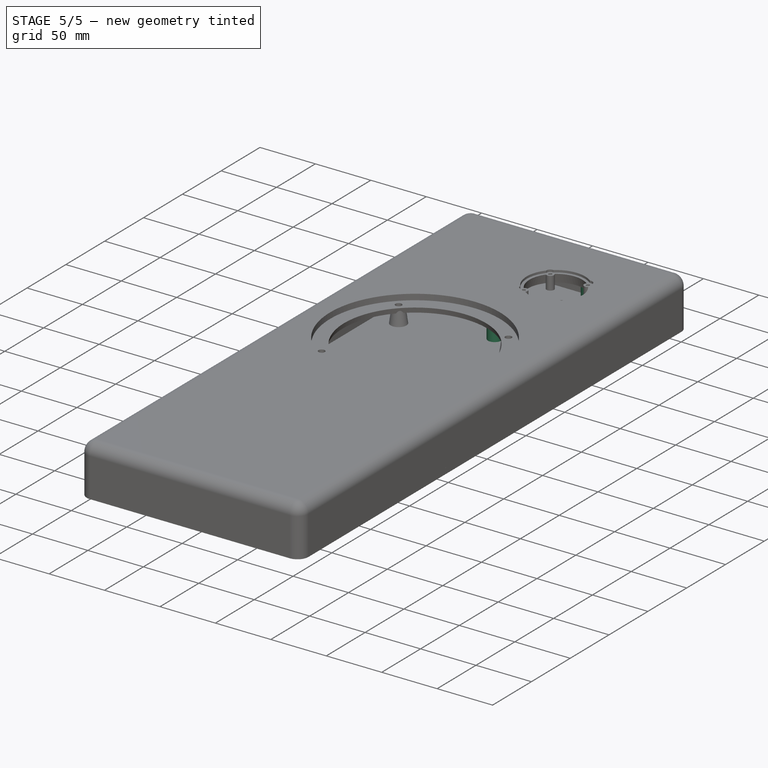
[diagram: stage 5 of 5 — iso view after this stage's code; geometry added in this stage tinted green]
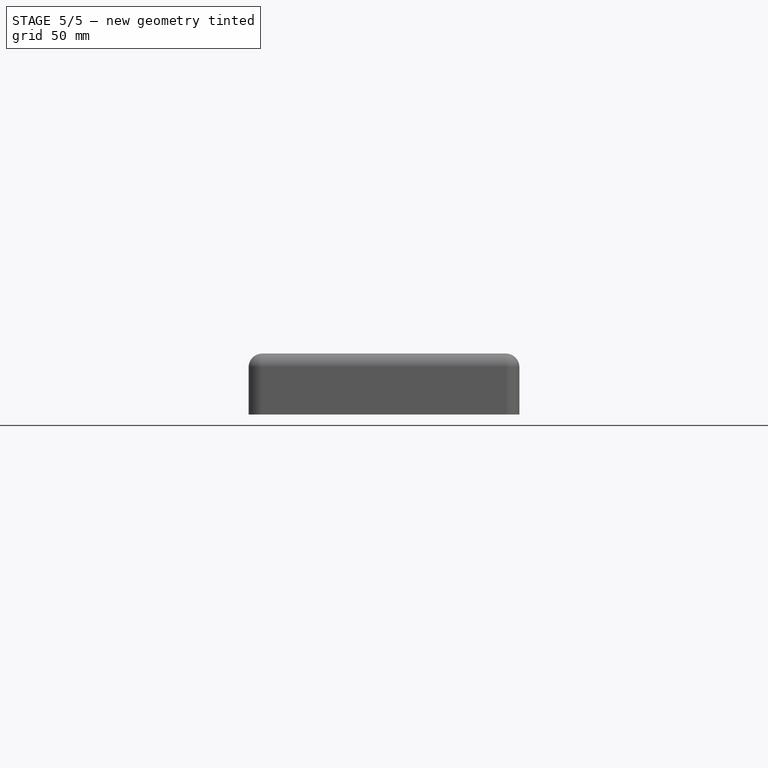
[diagram: stage 5 of 5 — front view after this stage's code; geometry added in this stage tinted green]
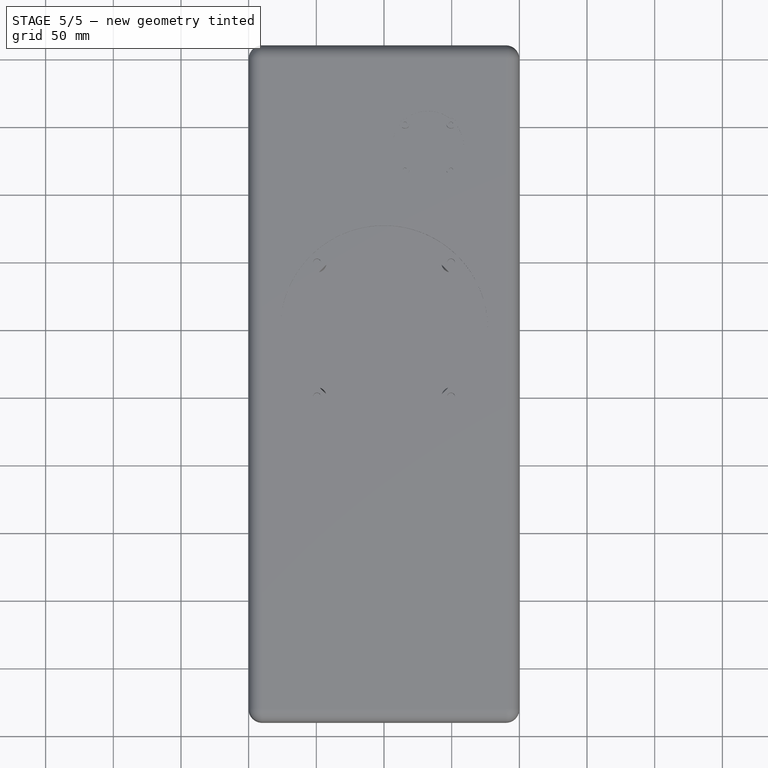
[diagram: stage 5 of 5 — top view after this stage's code; geometry added in this stage tinted green]
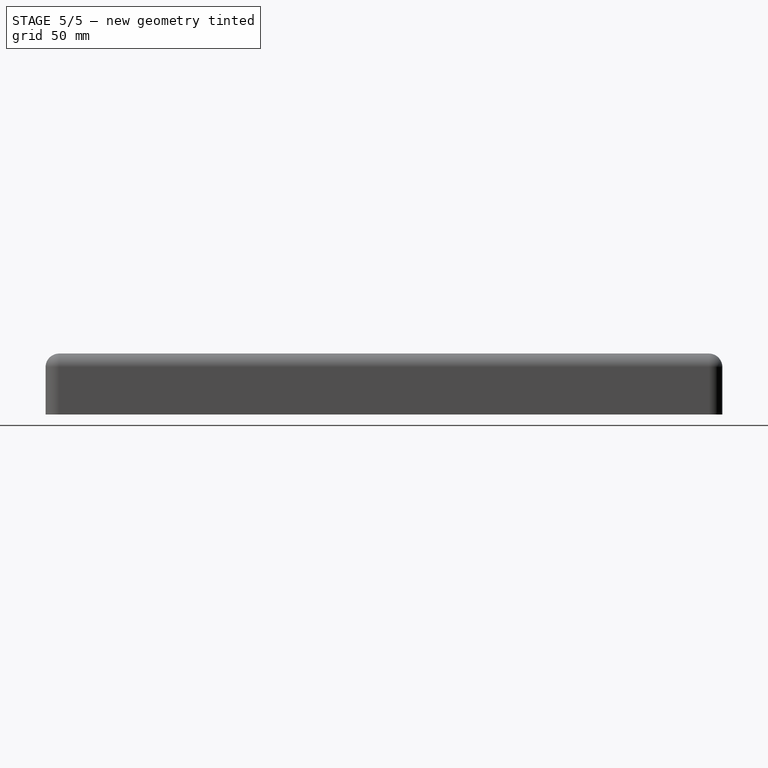
[diagram: stage 5 of 5 — right view after this stage's code; geometry added in this stage tinted green]
FEATURE [Sketcher::SketchObject] Sketch037  label="interior wall"
  ArcFitTolerance = 1e-06
  AttachmentOffset = pos=(-5,5,0) rot=(0,0,1;0rad)
  AttachmentSupport = -> [XY_Plane009]
  ExternalTypes = [0]
  FullyConstrained = true
  MakeInternals = false
  MapMode = 5
  Placement = pos=(-5,5,0) rot=(0,0,1;0rad)
  expr: .AttachmentOffset.Base.x = -<<dim>>.wall_thickness
  expr: .AttachmentOffset.Base.y = <<dim>>.front_roundover / 2
  sketch-geometry (4):
    g0: ArcOfCircle CenterX=100 CenterY=0 CenterZ=0 NormalX=0 NormalY=0 NormalZ=1 AngleXU=0 Radius=135 StartAngle=3.14159 EndAngle=4.71239
    g1: ArcOfCircle CenterX=100 CenterY=0 CenterZ=0 NormalX=0 NormalY=0 NormalZ=1 AngleXU=0 Radius=130 StartAngle=3.14159 EndAngle=4.71239
    g2: LineSegment StartX=-35 StartY=1.65e-14 StartZ=0 EndX=-30 EndY=1.59e-14 EndZ=0
    g3: LineSegment StartX=100 StartY=-130 StartZ=0 EndX=100 EndY=-135 EndZ=0
  constraints (14):
    c: PointOnObject(g0,g-1)
    c: PointOnObject(g0,g-1)
    c: Radius(g0) = 135
    c: DistanceX(g-1,g0) = 100
    c: DistanceX(g-1,g0) = 100
    c: PointOnObject(g1,g-1)
    c: PointOnObject(g1,g-1)
    c: Radius(g1) = 130
    c: DistanceX(g-1,g1) = 100
    c: DistanceX(g-1,g1) = 100
    c: Coincident(g2,g0)
    c: Coincident(g2,g1)
    c: Coincident(g3,g1)
    c: Coincident(g3,g0)
FEATURE [PartDesign::Pad] Pad026
  BaseFeature = -> Hole019
  Direction = (0,0,1)
  Length = 35
  Length2 = 10
  Placement = pos=(0,0,0) rot=(1,0,0;1.5708rad)
  Profile = -> Sketch037
  ReferenceAxis = -> Sketch037 [N_Axis]
  Suppressed = false
  Type = 0
  expr: Length = <<dim>>.wall_height + <<dim>>.front_roundover / 2
FEATURE [Sketcher::SketchObject] Sketch038  label="signal socket hole"
  ArcFitTolerance = 1e-06
  AttachmentSupport = -> [Pad026]
  ExternalTypes = [0]
  FullyConstrained = true
  MakeInternals = false
  MapMode = 5
  Placement = pos=(0,10,0) rot=(-1,0,0;1.5708rad)
  sketch-geometry (1):
    g0: Circle CenterX=0 CenterY=-10 CenterZ=0 NormalX=0 NormalY=0 NormalZ=1 AngleXU=0 Radius=5
  constraints (3):
    c: Diameter(g0) = 10
    c: PointOnObject(g0,g-2)
    c: DistanceY(g0,g-1) = 10
FEATURE [PartDesign::Pocket] Pocket005
  BaseFeature = -> Pad026
  Direction = (0,-1,-2e-16)
  Length = 5
  Length2 = 5
  Placement = pos=(0,0,0) rot=(1,0,0;1.5708rad)
  Profile = -> Sketch038
  ReferenceAxis = -> Sketch038 [N_Axis]
  Suppressed = false
  Type = 0
  expr: Length = <<dim>>.wall_thickness
FEATURE [App::Point] Origin019
  Role = Origin
FEATURE [Sketcher::SketchObject] Sketch  label="backplate posts"
  ArcFitTolerance = 1e-06
  AttachmentOffset = pos=(0,2.5,0) rot=(0,0,1;0rad)
  AttachmentSupport = -> [XY_Plane009]
  ExternalTypes = [0]
  FullyConstrained = true
  MakeInternals = false
  MapMode = 5
  Placement = pos=(0,2.5,0) rot=(0,0,1;0rad)
  expr: Constraints[1] = <<dim>>.ext_width / 2 - <<dim>>.wall_thickness - 3
  sketch-geometry (15):
    g0: Circle CenterX=-92 CenterY=-100 CenterZ=0 NormalX=0 NormalY=0 NormalZ=1 AngleXU=0 Radius=6
    g1: Circle CenterX=92 CenterY=-100 CenterZ=0 NormalX=0 NormalY=0 NormalZ=1 AngleXU=0 Radius=6
    g2: Circle CenterX=-92 CenterY=0 CenterZ=0 NormalX=0 NormalY=0 NormalZ=1 AngleXU=0 Radius=6
    g3: Circle CenterX=92 CenterY=0 CenterZ=0 NormalX=0 NormalY=0 NormalZ=1 AngleXU=0 Radius=6
    g4: Circle CenterX=-92 CenterY=-200 CenterZ=0 NormalX=0 NormalY=0 NormalZ=1 AngleXU=0 Radius=6
    g5: Circle CenterX=92 CenterY=-200 CenterZ=0 NormalX=0 NormalY=0 NormalZ=1 AngleXU=0 Radius=6
    g6: Circle CenterX=-92 CenterY=-300 CenterZ=0 NormalX=0 NormalY=0 NormalZ=1 AngleXU=0 Radius=6
    g7: Circle CenterX=92 CenterY=-300 CenterZ=0 NormalX=0 NormalY=0 NormalZ=1 AngleXU=0 Radius=6
    g8: Circle CenterX=-92 CenterY=-400 CenterZ=0 NormalX=0 NormalY=0 NormalZ=1 AngleXU=0 Radius=6
    g9: Circle CenterX=92 CenterY=-400 CenterZ=0 NormalX=0 NormalY=0 NormalZ=1 AngleXU=0 Radius=6
    g10: Circle CenterX=-92 CenterY=-485 CenterZ=0 NormalX=0 NormalY=0 NormalZ=1 AngleXU=0 Radius=6
    g11: Circle CenterX=92 CenterY=-485 CenterZ=0 NormalX=0 NormalY=0 NormalZ=1 AngleXU=0 Radius=6
    g12: Circle CenterX=0 CenterY=-485 CenterZ=0 NormalX=0 NormalY=0 NormalZ=1 AngleXU=0 Radius=6
    g13: Circle CenterX=0 CenterY=-100 CenterZ=0 NormalX=0 NormalY=0 NormalZ=1 AngleXU=0 Radius=6
    g14: Circle CenterX=15 CenterY=0 CenterZ=0 NormalX=0 NormalY=0 NormalZ=1 AngleXU=0 Radius=6
  constraints (39):
    c: Symmetric(g1,g0,g-2)
    c: DistanceX(g0,g-1) = 92
    c: Diameter(g0) = 12
    c: Diameter(g1) = 12
    c: DistanceY(g0,g-1) = 100
    c: Symmetric(g3,g2,g-2)
    c: DistanceX(g2,g-1) = 92
    c: Diameter(g2) = 12
    c: Diameter(g3) = 12
    c: DistanceY(g2,g-1) = 0
    c: Symmetric(g5,g4,g-2)
    c: DistanceX(g4,g-1) = 92
    c: Diameter(g4) = 12
    c: Diameter(g5) = 12
    c: DistanceY(g4,g-1) = 200
    c: Symmetric(g7,g6,g-2)
    c: DistanceX(g6,g-1) = 92
    c: Diameter(g6) = 12
    c: Diameter(g7) = 12
    c: DistanceY(g6,g-1) = 300
    c: Symmetric(g9,g8,g-2)
    c: DistanceX(g8,g-1) = 92
    c: Diameter(g8) = 12
    c: Diameter(g9) = 12
    c: DistanceY(g8,g-1) = 400
    c: Symmetric(g11,g10,g-2)
    c: DistanceX(g10,g-1) = 92
    c: Diameter(g10) = 12
    c: Diameter(g11) = 12
    c: DistanceY(g10,g-1) = 485
    c: Diameter(g12) = 12
    c: PointOnObject(g12,g-2)
    c: DistanceY(g12,g-1) = 485
    c: Diameter(g13) = 12
    c: PointOnObject(g13,g-2)
    c: DistanceY(g13,g-1) = 100
    c: Diameter(g14) = 12
    c: PointOnObject(g14,g-1)
    c: DistanceX(g-1,g14) = 15
FEATURE [PartDesign::Pad] Pad
  BaseFeature = -> Pocket005
  Direction = (0,0,1)
  Length = 20
  Length2 = 10
  Placement = pos=(0,0,0) rot=(1,0,0;1.5708rad)
  Profile = -> Sketch
  ReferenceAxis = -> Sketch [N_Axis]
  Suppressed = false
  Type = 0
FEATURE [PartDesign::Hole] Hole
  BaseFeature = -> Pad
  CustomThreadClearance = 0
  Depth = 20
  DepthType = 0
  Diameter = 5.67
  DrillForDepth = false
  DrillPoint = 1
  DrillPointAngle = 118
  HoleCutCountersinkAngle = 90
  HoleCutCustomValues = false
  HoleCutDepth = 0
  HoleCutDiameter = 6.1
  HoleCutType = 0
  ModelThread = false
  Placement = pos=(0,0,0) rot=(1,0,0;1.5708rad)
  Profile = -> Sketch
  Reversed = true
  Suppressed = false
  Tapered = false
  TaperedAngle = 90
  ThreadClass = 0
  ThreadDepth = 20
  ThreadDepthType = 0
  ThreadDirection = 0
  ThreadFit = 0
  ThreadSize = 0
  ThreadType = 0
  Threaded = false
  UseCustomThreadClearance = false
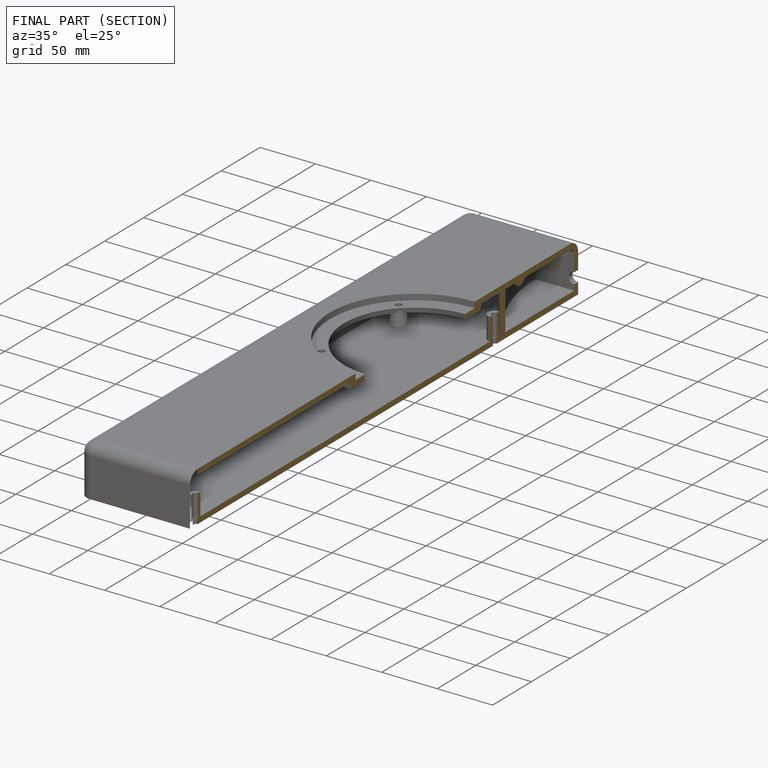
[diagram: finished part — half-section view (interior)]
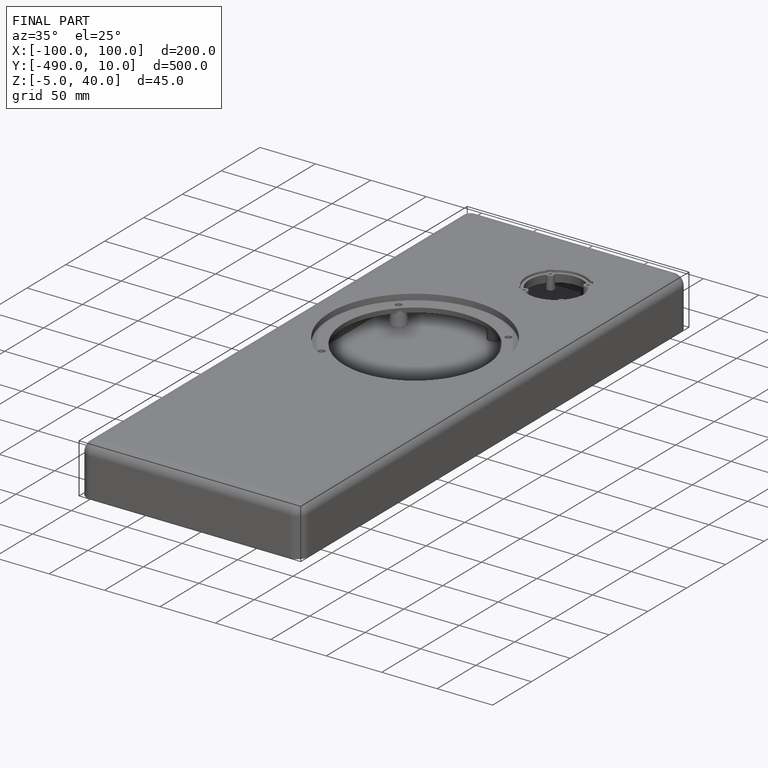
[diagram: finished part — iso view with bounding-box wireframe]
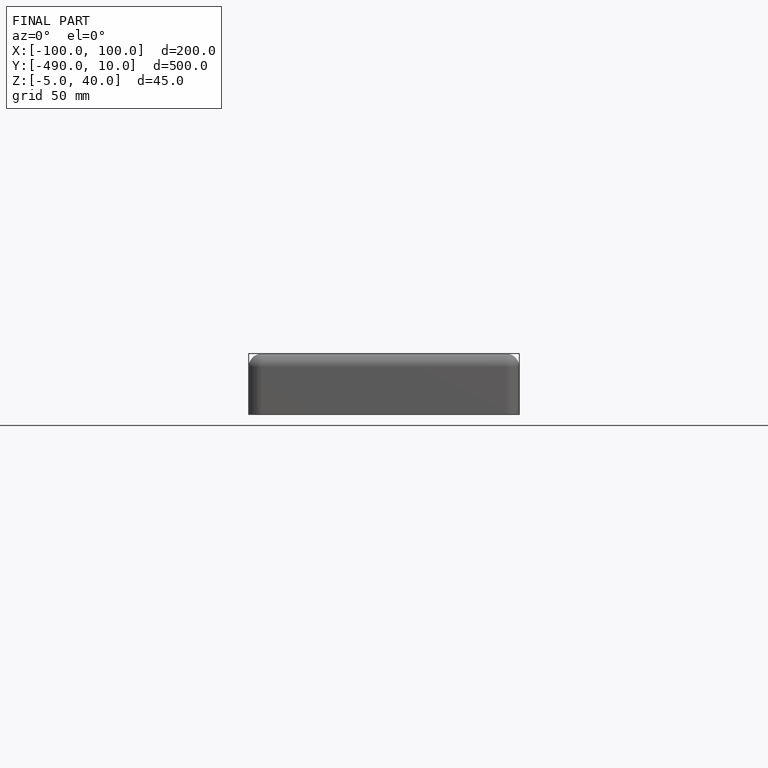
[diagram: finished part — front view with bounding-box wireframe]
